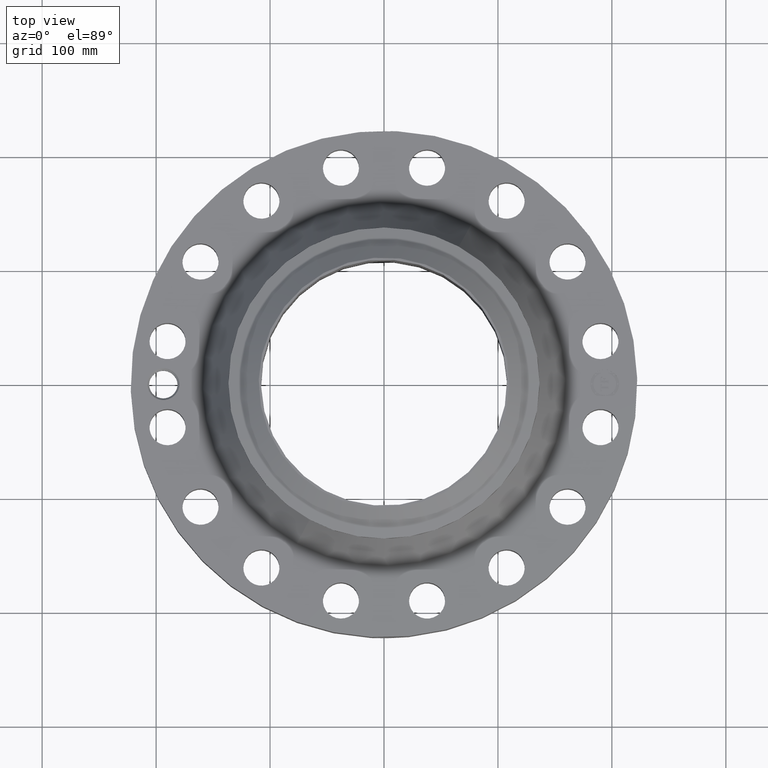
[diagram: clean part render]
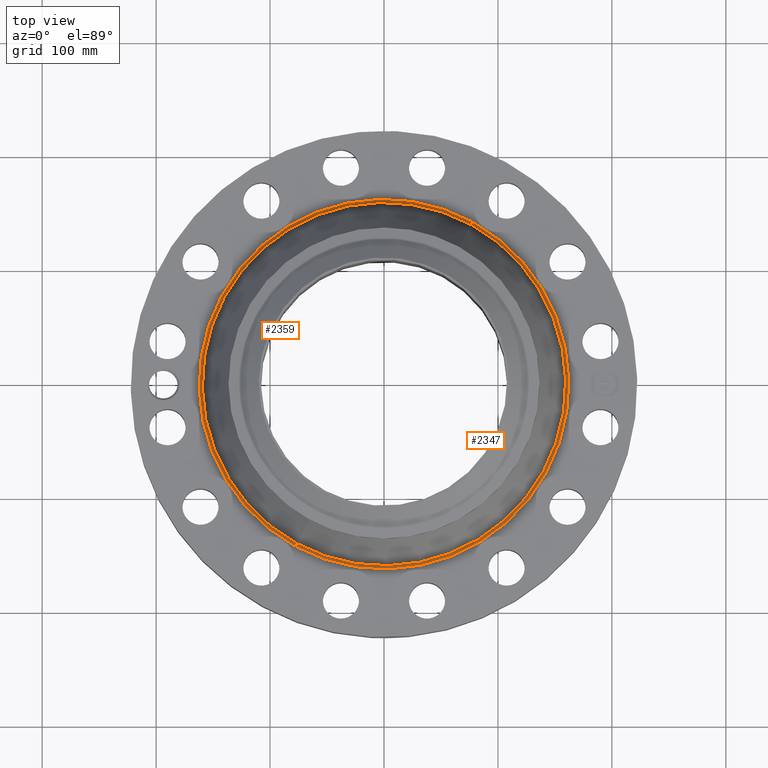
[diagram: same view with one multi-face feature highlighted, each face labeled with its STEP entity id]
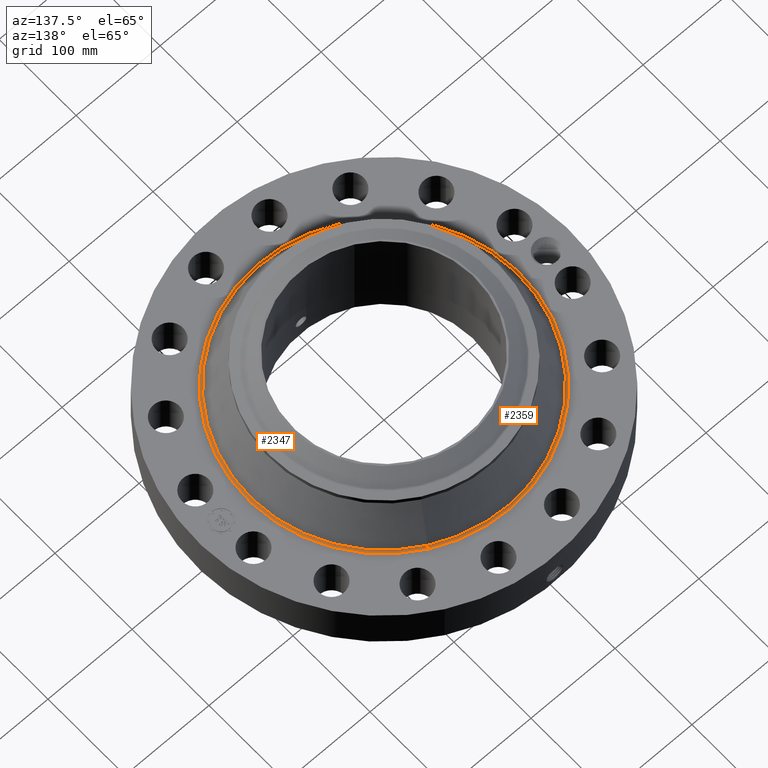
[diagram: same view with one multi-face feature highlighted, each face labeled with its STEP entity id]
A machine part, top view. The highlighted faces form ONE feature: a constant-radius fillet chain: 2 tangent blend faces with common blend radius 3.048 mm. The faces share edges in the B-rep.
A second angle (auxiliary view) of the same feature is appended — it is thin or edge-on in the first view.
Their STEP definitions:
[1] entity #2359 (Torus):
#719=AXIS2_PLACEMENT_3D('Circle Axis2P3D',#717,#718,$) ;
#2320=AXIS2_PLACEMENT_3D('Torus Axis2P3D',#2317,#2318,#2319) ;
#2324=AXIS2_PLACEMENT_3D('Circle Axis2P3D',#2322,#2323,$) ;
#2338=AXIS2_PLACEMENT_3D('Circle Axis2P3D',#2336,#2337,$) ;
#2350=AXIS2_PLACEMENT_3D('Circle Axis2P3D',#2348,#2349,$) ;
#717=CARTESIAN_POINT('Axis2P3D Location',(0.,0.,2.37000000001)) ;
#721=CARTESIAN_POINT('Vertex',(-3.06134204674,-5.60374902851,2.37000000001)) ;
#723=CARTESIAN_POINT('Vertex',(3.06134204674,5.60374902851,2.37000000001)) ;
#2317=CARTESIAN_POINT('Axis2P3D Location',(0.,0.,2.49000000001)) ;
#2322=CARTESIAN_POINT('Axis2P3D Location',(3.06134204674,5.60374902851,2.49000000001)) ;
#2326=CARTESIAN_POINT('Vertex',(3.00949732195,5.50884789636,2.43798173757)) ;
#2333=CARTESIAN_POINT('Vertex',(-3.00949732195,-5.50884789636,2.43798173757)) ;
#2336=CARTESIAN_POINT('Axis2P3D Location',(-3.06134204674,-5.60374902851,2.49000000001)) ;
#2348=CARTESIAN_POINT('Axis2P3D Location',(0.,0.,2.43798173757)) ;
#718=DIRECTION('Axis2P3D Direction',(0.,0.,-0.0393700787402)) ;
#2318=DIRECTION('Axis2P3D Direction',(0.,0.,-0.0393700787402)) ;
#2319=DIRECTION('Axis2P3D XDirection',(-0.0188750212049,-0.0345504945626,0.)) ;
#2323=DIRECTION('Axis2P3D Direction',(-0.0345504945626,0.0188750212049,0.)) ;
#2337=DIRECTION('Axis2P3D Direction',(0.0345504945626,-0.0188750212049,0.)) ;
#2349=DIRECTION('Axis2P3D Direction',(0.,0.,-0.0393700787402)) ;
#2354=ORIENTED_EDGE('',*,*,#725,.F.) ;
#2355=ORIENTED_EDGE('',*,*,#2340,.T.) ;
#2356=ORIENTED_EDGE('',*,*,#2352,.T.) ;
#2357=ORIENTED_EDGE('',*,*,#2328,.F.) ;
#2359=ADVANCED_FACE('PartBody',(#2358),#2321,.F.) ;
#720=CIRCLE('generated circle',#719,6.38543798824) ;
#2325=CIRCLE('generated circle',#2324,0.12) ;
#2339=CIRCLE('generated circle',#2338,0.12) ;
#2351=CIRCLE('generated circle',#2350,6.27729872445) ;
#2321=TOROIDAL_SURFACE('homeo Torus',#2320,6.38543798824,0.12) ;
#725=EDGE_CURVE('',#722,#724,#720,.T.) ;
#2328=EDGE_CURVE('',#724,#2327,#2325,.T.) ;
#2340=EDGE_CURVE('',#722,#2334,#2339,.T.) ;
#2352=EDGE_CURVE('',#2334,#2327,#2351,.T.) ;
#2353=EDGE_LOOP('',(#2354,#2355,#2356,#2357)) ;
#2358=FACE_OUTER_BOUND('',#2353,.T.) ;
#722=VERTEX_POINT('',#721) ;
#724=VERTEX_POINT('',#723) ;
#2327=VERTEX_POINT('',#2326) ;
#2334=VERTEX_POINT('',#2333) ;
[2] entity #2347 (Torus):
#728=AXIS2_PLACEMENT_3D('Circle Axis2P3D',#726,#727,$) ;
#2320=AXIS2_PLACEMENT_3D('Torus Axis2P3D',#2317,#2318,#2319) ;
#2324=AXIS2_PLACEMENT_3D('Circle Axis2P3D',#2322,#2323,$) ;
#2331=AXIS2_PLACEMENT_3D('Circle Axis2P3D',#2329,#2330,$) ;
#2338=AXIS2_PLACEMENT_3D('Circle Axis2P3D',#2336,#2337,$) ;
#721=CARTESIAN_POINT('Vertex',(-3.06134204674,-5.60374902851,2.37000000001)) ;
#723=CARTESIAN_POINT('Vertex',(3.06134204674,5.60374902851,2.37000000001)) ;
#726=CARTESIAN_POINT('Axis2P3D Location',(0.,0.,2.37000000001)) ;
#2317=CARTESIAN_POINT('Axis2P3D Location',(0.,0.,2.49000000001)) ;
#2322=CARTESIAN_POINT('Axis2P3D Location',(3.06134204674,5.60374902851,2.49000000001)) ;
#2326=CARTESIAN_POINT('Vertex',(3.00949732195,5.50884789636,2.43798173757)) ;
#2329=CARTESIAN_POINT('Axis2P3D Location',(0.,0.,2.43798173757)) ;
#2333=CARTESIAN_POINT('Vertex',(-3.00949732195,-5.50884789636,2.43798173757)) ;
#2336=CARTESIAN_POINT('Axis2P3D Location',(-3.06134204674,-5.60374902851,2.49000000001)) ;
#727=DIRECTION('Axis2P3D Direction',(0.,0.,-0.0393700787402)) ;
#2318=DIRECTION('Axis2P3D Direction',(0.,0.,-0.0393700787402)) ;
#2319=DIRECTION('Axis2P3D XDirection',(-0.0188750212049,-0.0345504945626,0.)) ;
#2323=DIRECTION('Axis2P3D Direction',(-0.0345504945626,0.0188750212049,0.)) ;
#2330=DIRECTION('Axis2P3D Direction',(0.,0.,-0.0393700787402)) ;
#2337=DIRECTION('Axis2P3D Direction',(0.0345504945626,-0.0188750212049,0.)) ;
#2342=ORIENTED_EDGE('',*,*,#730,.F.) ;
#2343=ORIENTED_EDGE('',*,*,#2328,.T.) ;
#2344=ORIENTED_EDGE('',*,*,#2335,.T.) ;
#2345=ORIENTED_EDGE('',*,*,#2340,.F.) ;
#2347=ADVANCED_FACE('PartBody',(#2346),#2321,.F.) ;
#729=CIRCLE('generated circle',#728,6.38543798824) ;
#2325=CIRCLE('generated circle',#2324,0.12) ;
#2332=CIRCLE('generated circle',#2331,6.27729872445) ;
#2339=CIRCLE('generated circle',#2338,0.12) ;
#2321=TOROIDAL_SURFACE('homeo Torus',#2320,6.38543798824,0.12) ;
#730=EDGE_CURVE('',#724,#722,#729,.T.) ;
#2328=EDGE_CURVE('',#724,#2327,#2325,.T.) ;
#2335=EDGE_CURVE('',#2327,#2334,#2332,.T.) ;
#2340=EDGE_CURVE('',#722,#2334,#2339,.T.) ;
#2341=EDGE_LOOP('',(#2342,#2343,#2344,#2345)) ;
#2346=FACE_OUTER_BOUND('',#2341,.T.) ;
#722=VERTEX_POINT('',#721) ;
#724=VERTEX_POINT('',#723) ;
#2327=VERTEX_POINT('',#2326) ;
#2334=VERTEX_POINT('',#2333) ;